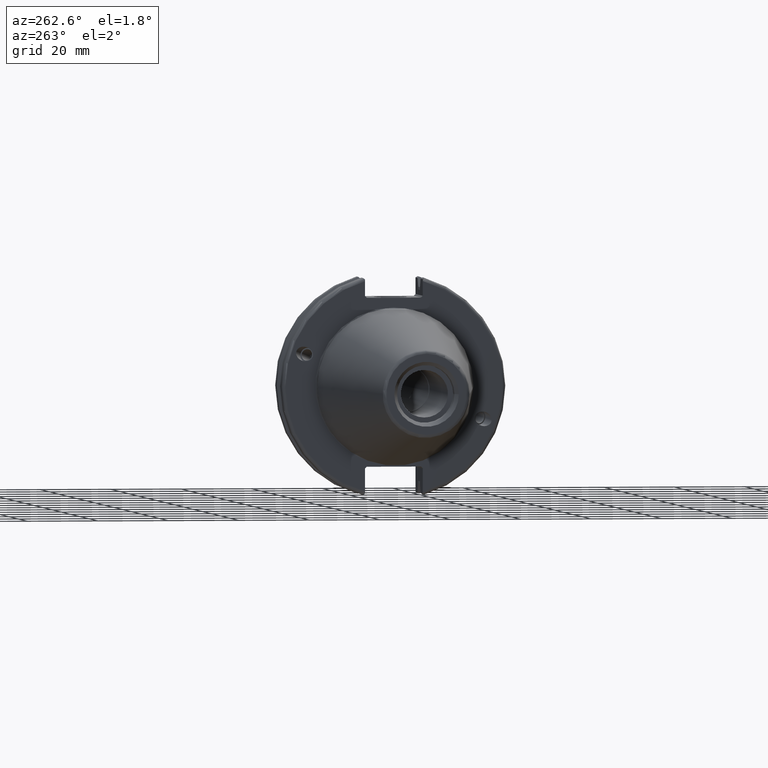
[diagram: clean part render]
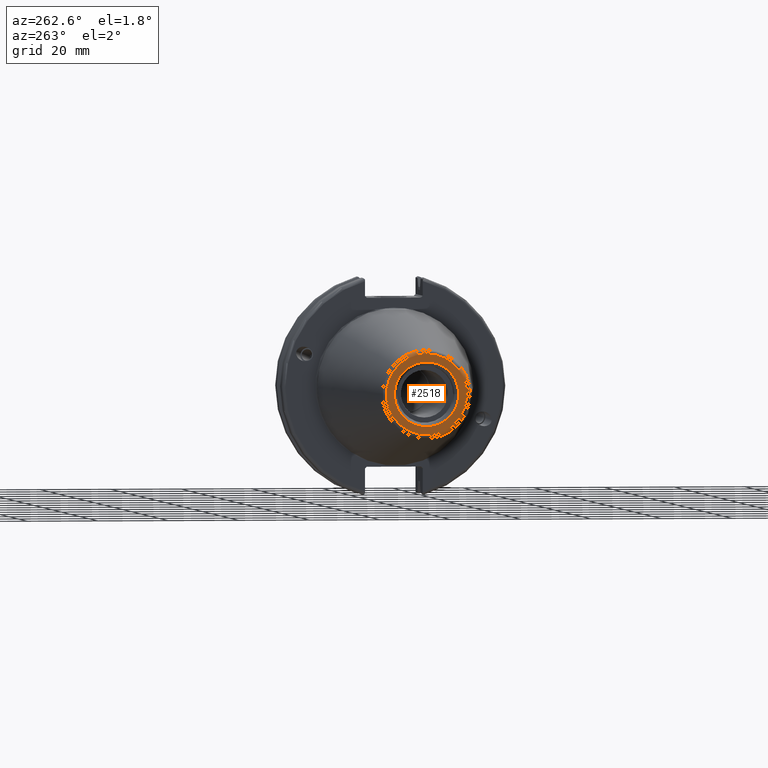
[diagram: same view with one face highlighted and labeled with its STEP entity id]
A machine part, auxiliary view. The second image highlights one B-rep face of the part: STEP entity #2518.
In plain terms, the highlighted planar face has unit normal (-1, 0, 0).
Its self-contained STEP definition (entity closure, byte-faithful):
#183=FACE_BOUND('',#553,.T.);
#265=CIRCLE('',#2858,11.4071305970304);
#266=CIRCLE('',#2860,9.15);
#390=FACE_OUTER_BOUND('',#552,.T.);
#552=EDGE_LOOP('',(#2032));
#553=EDGE_LOOP('',(#2033));
#1180=VERTEX_POINT('',#4583);
#1181=VERTEX_POINT('',#4587);
#1493=EDGE_CURVE('',#1180,#1180,#265,.T.);
#1494=EDGE_CURVE('',#1181,#1181,#266,.T.);
#2032=ORIENTED_EDGE('',*,*,#1493,.F.);
#2033=ORIENTED_EDGE('',*,*,#1494,.T.);
#2401=PLANE('',#2859);
#2518=ADVANCED_FACE('',(#390,#183),#2401,.T.);
#2858=AXIS2_PLACEMENT_3D('',#4585,#3419,#3420);
#2859=AXIS2_PLACEMENT_3D('',#4586,#3421,#3422);
#2860=AXIS2_PLACEMENT_3D('',#4588,#3423,#3424);
#3419=DIRECTION('center_axis',(1.,0.,0.));
#3420=DIRECTION('ref_axis',(0.,-1.,1.83697019872103E-16));
#3421=DIRECTION('center_axis',(-1.,0.,0.));
#3422=DIRECTION('ref_axis',(0.,0.,1.));
#3423=DIRECTION('center_axis',(1.,0.,0.));
#3424=DIRECTION('ref_axis',(0.,0.,-1.));
#4583=CARTESIAN_POINT('',(-68.25,-1.39697059731091E-15,11.4071305970304));
#4585=CARTESIAN_POINT('Origin',(-68.25,0.,0.));
#4586=CARTESIAN_POINT('Origin',(-68.25,12.271875,0.));
#4587=CARTESIAN_POINT('',(-68.25,-9.15,-1.12055182121983E-15));
#4588=CARTESIAN_POINT('Origin',(-68.25,0.,0.));